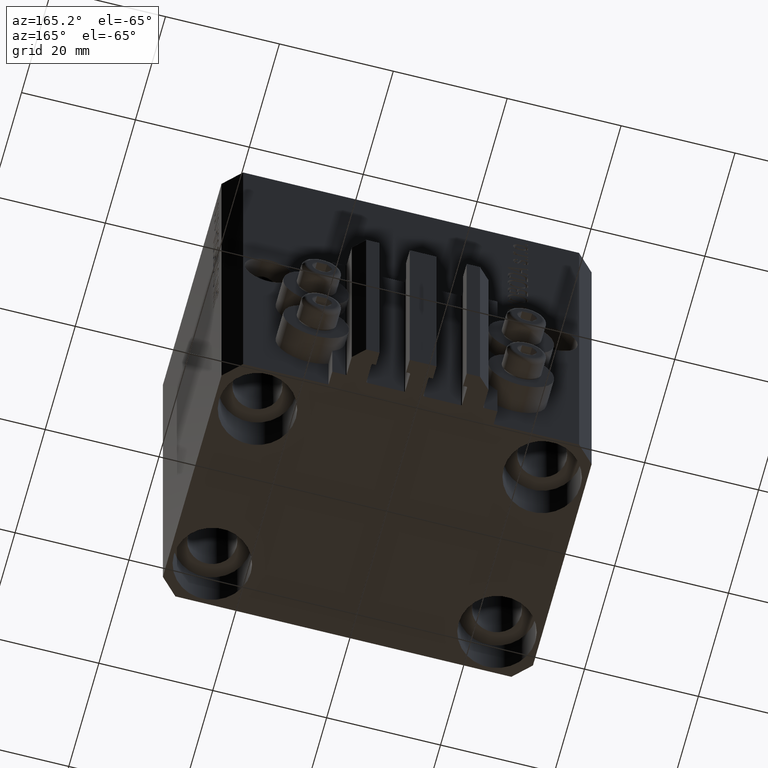
[diagram: clean part render]
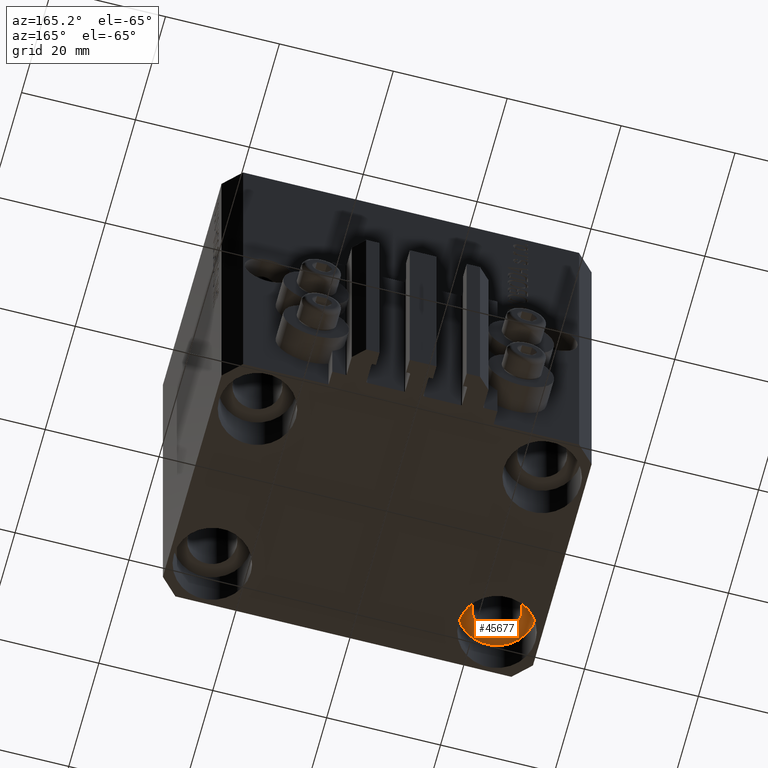
[diagram: same view with one face highlighted and labeled with its STEP entity id]
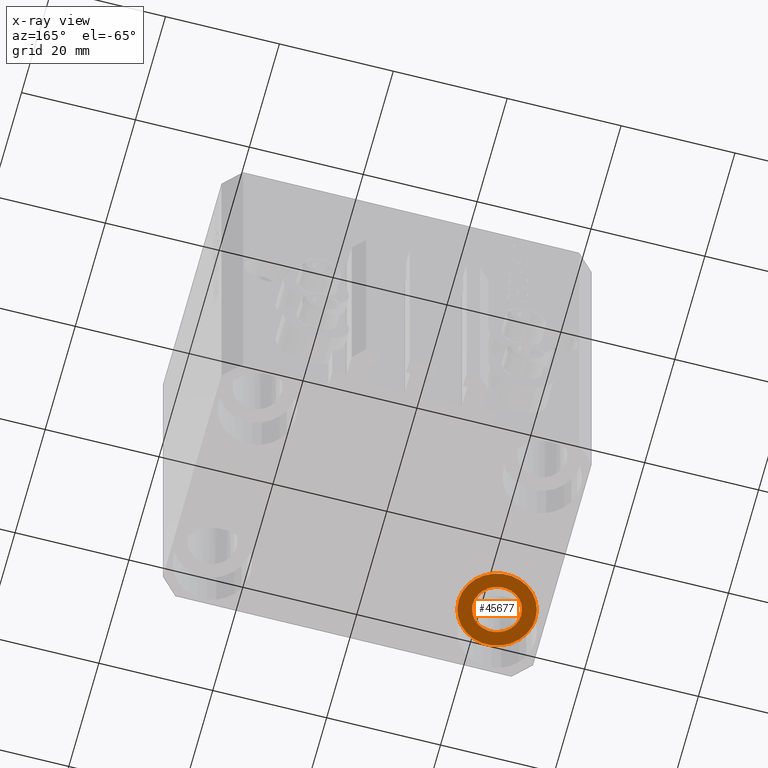
[diagram: x-ray of the same camera — body ghosted, the highlighted face saturated]
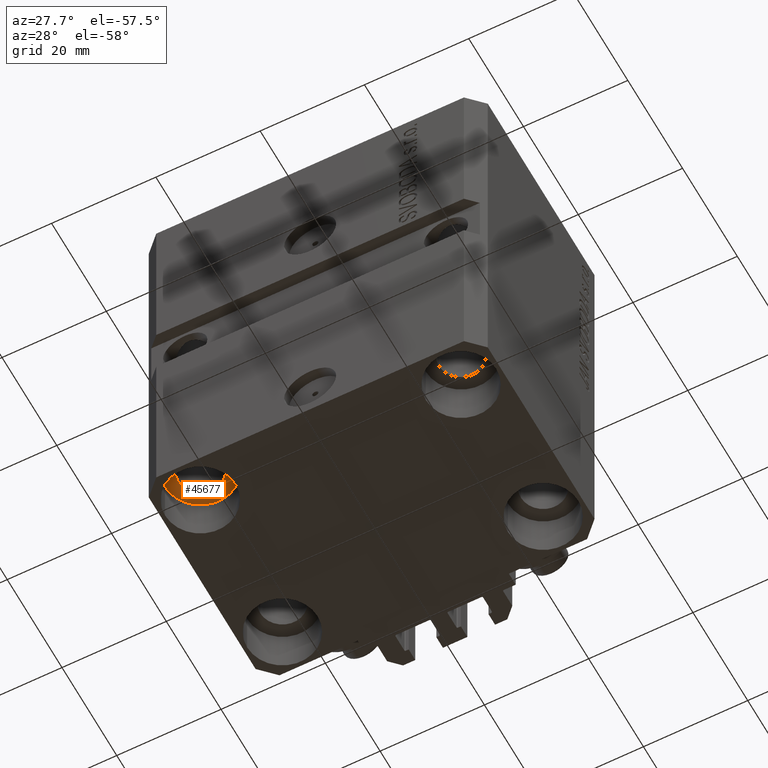
[diagram: same view with one face highlighted and labeled with its STEP entity id]
A machine part, auxiliary view. The second image highlights one B-rep face of the part: STEP entity #45677.
The next image is the same camera in x-ray: the body ghosted, the highlighted face saturated — about 0% of this face is hidden behind the body in this view.
A second angle (auxiliary view) of the same face is appended — the face is thin or edge-on in the first view.
In plain terms, the highlighted planar face has unit normal (0, 0, -1).
Its self-contained STEP definition (entity closure, byte-faithful):
#1342 = CIRCLE ( 'NONE', #4411, 6.750000000041541881 ) ;
#2145 = EDGE_CURVE ( 'NONE', #6616, #42568, #1342, .T. ) ;
#3362 = CARTESIAN_POINT ( 'NONE',  ( -25.00000000000000355, -15.00000000000000000, -68.00000000000000000 ) ) ;
#3591 = DIRECTION ( 'NONE',  ( 1.000000000000000000, 0.000000000000000000, 0.000000000000000000 ) ) ;
#4078 = EDGE_LOOP ( 'NONE', ( #26156, #34514 ) ) ;
#4411 = AXIS2_PLACEMENT_3D ( 'NONE', #17675, #39851, #14096 ) ;
#5666 = DIRECTION ( 'NONE',  ( 0.000000000000000000, 0.000000000000000000, -1.000000000000000000 ) ) ;
#6553 = CARTESIAN_POINT ( 'NONE',  ( -31.75000000004154899, -15.00000000000000000, -68.00000000000000000 ) ) ;
#6616 = VERTEX_POINT ( 'NONE', #9013 ) ;
#6894 = CIRCLE ( 'NONE', #39643, 4.250000000041540105 ) ;
#7713 = EDGE_CURVE ( 'NONE', #37341, #33748, #6894, .T. ) ;
#9013 = CARTESIAN_POINT ( 'NONE',  ( -18.24999999995845812, -15.00000000000000000, -68.00000000000000000 ) ) ;
#9034 = DIRECTION ( 'NONE',  ( 0.000000000000000000, 0.000000000000000000, -1.000000000000000000 ) ) ;
#10072 = CARTESIAN_POINT ( 'NONE',  ( -20.74999999995846522, -15.00000000000000000, -68.00000000000000000 ) ) ;
#13428 = CIRCLE ( 'NONE', #33252, 6.750000000041541881 ) ;
#14096 = DIRECTION ( 'NONE',  ( 1.000000000000000000, 0.000000000000000000, 0.000000000000000000 ) ) ;
#17172 = EDGE_CURVE ( 'NONE', #33748, #37341, #24115, .T. ) ;
#17201 = DIRECTION ( 'NONE',  ( -0.000000000000000000, -0.000000000000000000, 1.000000000000000000 ) ) ;
#17675 = CARTESIAN_POINT ( 'NONE',  ( -25.00000000000000355, -15.00000000000000000, -68.00000000000000000 ) ) ;
#17845 = EDGE_CURVE ( 'NONE', #42568, #6616, #13428, .T. ) ;
#19373 = ORIENTED_EDGE ( 'NONE', *, *, #17845, .F. ) ;
#19859 = AXIS2_PLACEMENT_3D ( 'NONE', #3362, #25531, #3591 ) ;
#20216 = DIRECTION ( 'NONE',  ( -1.000000000000000000, 0.000000000000000000, 0.000000000000000000 ) ) ;
#21491 = FACE_OUTER_BOUND ( 'NONE', #38631, .T. ) ;
#24115 = CIRCLE ( 'NONE', #26400, 4.250000000041540105 ) ;
#25531 = DIRECTION ( 'NONE',  ( 0.000000000000000000, 0.000000000000000000, -1.000000000000000000 ) ) ;
#26156 = ORIENTED_EDGE ( 'NONE', *, *, #17172, .F. ) ;
#26233 = DIRECTION ( 'NONE',  ( -1.000000000000000000, 0.000000000000000000, 0.000000000000000000 ) ) ;
#26400 = AXIS2_PLACEMENT_3D ( 'NONE', #41715, #9034, #26233 ) ;
#26927 = ORIENTED_EDGE ( 'NONE', *, *, #2145, .F. ) ;
#31295 = CARTESIAN_POINT ( 'NONE',  ( -25.00000000000000355, -15.00000000000000000, -68.00000000000000000 ) ) ;
#32934 = FACE_BOUND ( 'NONE', #4078, .T. ) ;
#33252 = AXIS2_PLACEMENT_3D ( 'NONE', #31295, #17201, #38911 ) ;
#33748 = VERTEX_POINT ( 'NONE', #10072 ) ;
#34514 = ORIENTED_EDGE ( 'NONE', *, *, #7713, .F. ) ;
#36274 = PLANE ( 'NONE',  #19859 ) ;
#37341 = VERTEX_POINT ( 'NONE', #41223 ) ;
#38353 = CARTESIAN_POINT ( 'NONE',  ( -25.00000000000000355, -15.00000000000000000, -68.00000000000000000 ) ) ;
#38631 = EDGE_LOOP ( 'NONE', ( #19373, #26927 ) ) ;
#38911 = DIRECTION ( 'NONE',  ( 1.000000000000000000, 0.000000000000000000, 0.000000000000000000 ) ) ;
#39643 = AXIS2_PLACEMENT_3D ( 'NONE', #38353, #5666, #20216 ) ;
#39851 = DIRECTION ( 'NONE',  ( -0.000000000000000000, -0.000000000000000000, 1.000000000000000000 ) ) ;
#41223 = CARTESIAN_POINT ( 'NONE',  ( -29.25000000004154543, -15.00000000000000000, -68.00000000000000000 ) ) ;
#41715 = CARTESIAN_POINT ( 'NONE',  ( -25.00000000000000355, -15.00000000000000000, -68.00000000000000000 ) ) ;
#42568 = VERTEX_POINT ( 'NONE', #6553 ) ;
#45677 = ADVANCED_FACE ( 'NONE', ( #32934, #21491 ), #36274, .T. ) ;